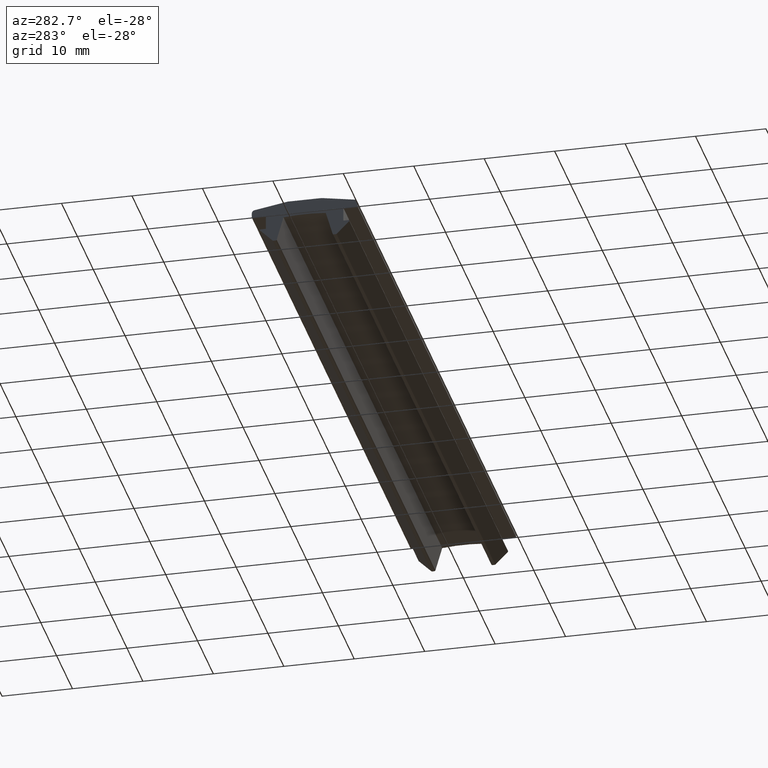
[diagram: clean part render]
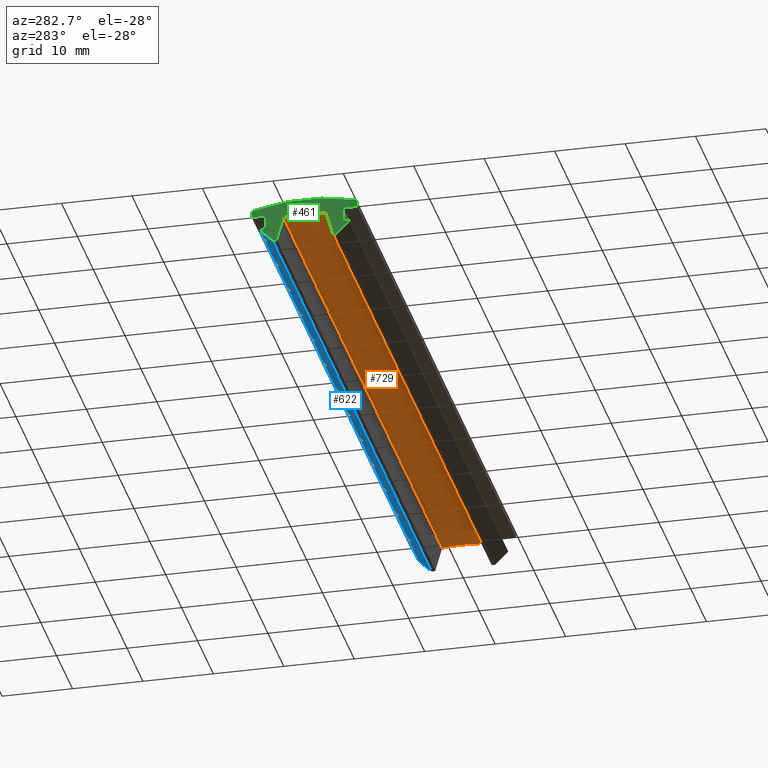
[diagram: same view with three faces highlighted in distinct colors, each labeled with its STEP entity id]
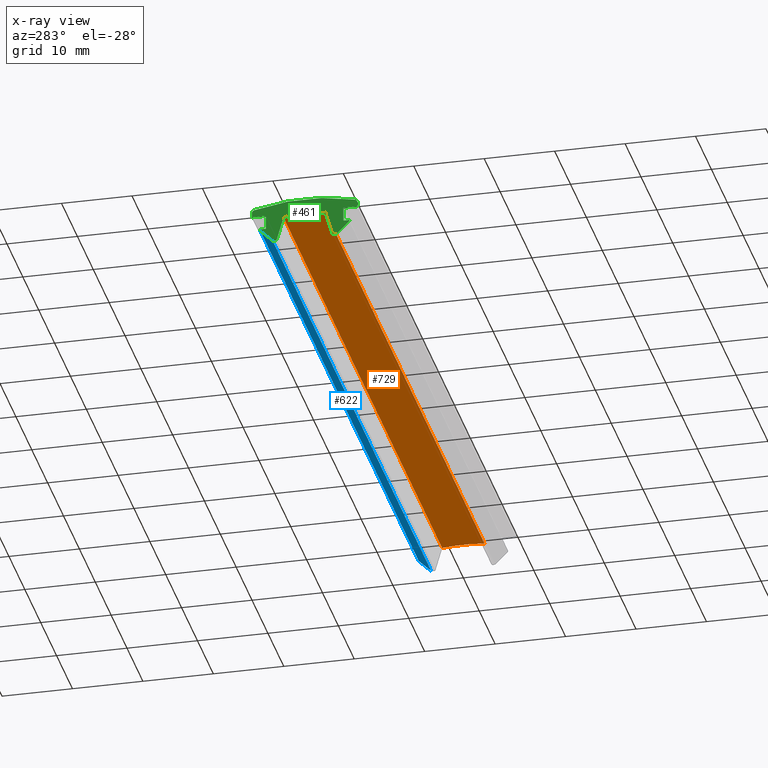
[diagram: x-ray of the same camera — body ghosted, the three highlighted faces saturated]
A machine part, auxiliary view with three faces highlighted in distinct colors.
The next image is the same camera in x-ray (body ghosted, the three faces saturated) — at least one of them is partly hidden behind the body in this view.
Their STEP definitions:

[orange] entity #729 — the highlighted cylindrical surface (partial cylindrical patch) has radius 30.019 mm, axis along (-1, -0, 0).
#101=CARTESIAN_POINT('',(100.0,-2.999999999999973,-0.150281450180138));
#102=VERTEX_POINT('',#101);
#109=CARTESIAN_POINT('',(100.0,3.000000000000010,-0.150281450180143));
#110=VERTEX_POINT('',#109);
#111=CARTESIAN_POINT('',(100.0,-8.881784E-016,-30.018956110195745));
#112=DIRECTION('',(1.0,6.123234E-017,-3.749399E-033));
#113=DIRECTION('',(6.123234E-017,-1.0,6.123234E-017));
#114=AXIS2_PLACEMENT_3D('',#111,#112,#113);
#115=CIRCLE('',#114,30.018956110195745);
#116=EDGE_CURVE('',#110,#102,#115,.T.);
#410=CARTESIAN_POINT('',(-1.836970E-016,3.000000000000004,-0.150281450180143));
#411=VERTEX_POINT('',#410);
#418=CARTESIAN_POINT('',(1.836970E-016,-2.999999999999980,-0.150281450180138));
#419=VERTEX_POINT('',#418);
#420=CARTESIAN_POINT('',(3.944305E-031,-7.105427E-015,-30.018956110195745));
#421=DIRECTION('',(1.0,6.123234E-017,-3.749399E-033));
#422=DIRECTION('',(6.123234E-017,-1.0,6.123234E-017));
#423=AXIS2_PLACEMENT_3D('',#420,#421,#422);
#424=CIRCLE('',#423,30.018956110195745);
#425=EDGE_CURVE('',#411,#419,#424,.T.);
#704=CARTESIAN_POINT('',(100.0,3.000000000000010,-0.150281450180143));
#705=DIRECTION('',(-1.0,0.0,0.0));
#706=VECTOR('',#705,100.0);
#707=LINE('',#704,#706);
#708=EDGE_CURVE('',#110,#411,#707,.T.);
#713=CARTESIAN_POINT('',(100.000000009999990,-9.675719E-016,-30.018956110195745));
#714=DIRECTION('',(-1.0,-6.123234E-017,3.749399E-033));
#715=DIRECTION('',(6.123234E-017,-1.0,6.123234E-017));
#716=AXIS2_PLACEMENT_3D('',#713,#714,#715);
#717=CYLINDRICAL_SURFACE('',#716,30.018956110195745);
#718=ORIENTED_EDGE('',*,*,#116,.T.);
#719=CARTESIAN_POINT('',(100.0,-2.999999999999973,-0.150281450180138));
#720=DIRECTION('',(-1.0,0.0,0.0));
#721=VECTOR('',#720,100.0);
#722=LINE('',#719,#721);
#723=EDGE_CURVE('',#102,#419,#722,.T.);
#724=ORIENTED_EDGE('',*,*,#723,.T.);
#725=ORIENTED_EDGE('',*,*,#425,.F.);
#726=ORIENTED_EDGE('',*,*,#708,.F.);
#727=EDGE_LOOP('',(#718,#724,#725,#726));
#728=FACE_OUTER_BOUND('',#727,.T.);
#729=ADVANCED_FACE('',(#728),#717,.F.);

[blue] entity #622 — the highlighted planar face has unit normal (-0, 0.7071, -0.7071).
#143=CARTESIAN_POINT('',(100.0,4.558578643762702,-3.591702806417446));
#144=VERTEX_POINT('',#143);
#152=CARTESIAN_POINT('',(100.0,6.329289321881354,-1.820992128298794));
#153=VERTEX_POINT('',#152);
#154=CARTESIAN_POINT('',(100.0,6.329289321881354,-1.820992128298794));
#155=DIRECTION('',(0.0,-0.707106781186547,-0.707106781186548));
#156=VECTOR('',#155,2.504163056034259);
#157=LINE('',#154,#156);
#158=EDGE_CURVE('',#153,#144,#157,.T.);
#367=CARTESIAN_POINT('',(-3.875572E-016,6.329289321881348,-1.820992128298794));
#368=VERTEX_POINT('',#367);
#376=CARTESIAN_POINT('',(-2.791324E-016,4.558578643762696,-3.591702806417446));
#377=VERTEX_POINT('',#376);
#378=CARTESIAN_POINT('',(-3.875572E-016,6.329289321881347,-1.820992128298792));
#379=DIRECTION('',(4.329780E-017,-0.707106781186547,-0.707106781186548));
#380=VECTOR('',#379,2.504163056034259);
#381=LINE('',#378,#380);
#382=EDGE_CURVE('',#368,#377,#381,.T.);
#601=CARTESIAN_POINT('',(101.296594217179890,6.500000000000004,-1.650281450180139));
#602=DIRECTION('',(-4.329780E-017,0.707106781186548,-0.707106781186547));
#603=DIRECTION('',(4.329780E-017,-0.707106781186547,-0.707106781186548));
#604=AXIS2_PLACEMENT_3D('',#601,#602,#603);
#605=PLANE('',#604);
#606=ORIENTED_EDGE('',*,*,#382,.F.);
#607=CARTESIAN_POINT('',(-3.875572E-016,6.329289321881348,-1.820992128298794));
#608=DIRECTION('',(1.0,0.0,0.0));
#609=VECTOR('',#608,100.0);
#610=LINE('',#607,#609);
#611=EDGE_CURVE('',#368,#153,#610,.T.);
#612=ORIENTED_EDGE('',*,*,#611,.T.);
#613=ORIENTED_EDGE('',*,*,#158,.T.);
#614=CARTESIAN_POINT('',(100.0,4.558578643762702,-3.591702806417446));
#615=DIRECTION('',(-1.0,0.0,0.0));
#616=VECTOR('',#615,100.0);
#617=LINE('',#614,#616);
#618=EDGE_CURVE('',#144,#377,#617,.T.);
#619=ORIENTED_EDGE('',*,*,#618,.T.);
#620=EDGE_LOOP('',(#606,#612,#613,#619));
#621=FACE_OUTER_BOUND('',#620,.T.);
#622=ADVANCED_FACE('',(#621),#605,.T.);

[green] entity #461 — the highlighted planar face has unit normal (-1, 0, 0).
#18=CARTESIAN_POINT('',(3.893506E-016,-6.358578643762685,-1.750281450180139));
#19=VERTEX_POINT('',#18);
#26=CARTESIAN_POINT('',(3.875572E-016,-6.329289321881340,-1.820992128298793));
#27=VERTEX_POINT('',#26);
#28=CARTESIAN_POINT('',(3.832274E-016,-6.258578643762686,-1.750281450180139));
#29=DIRECTION('',(-1.0,-6.123234E-017,3.749399E-033));
#30=DIRECTION('',(6.123234E-017,-1.0,6.123234E-017));
#31=AXIS2_PLACEMENT_3D('',#28,#29,#30);
#32=CIRCLE('',#31,0.100000000000000);
#33=EDGE_CURVE('',#27,#19,#32,.T.);
#253=CARTESIAN_POINT('',(-5.051668E-016,8.250000000000004,-3.949722514642862));
#254=DIRECTION('',(-1.0,0.0,0.0));
#255=DIRECTION('',(0.0,-1.0,0.0));
#256=AXIS2_PLACEMENT_3D('',#253,#254,#255);
#257=PLANE('',#256);
#258=CARTESIAN_POINT('',(2.791324E-016,-4.558578643762690,-3.591702806417445));
#259=VERTEX_POINT('',#258);
#260=CARTESIAN_POINT('',(3.875572E-016,-6.329289321881340,-1.820992128298793));
#261=DIRECTION('',(-4.329780E-017,0.707106781186547,-0.707106781186548));
#262=VECTOR('',#261,2.504163056034258);
#263=LINE('',#260,#262);
#264=EDGE_CURVE('',#27,#259,#263,.T.);
#265=ORIENTED_EDGE('',*,*,#264,.F.);
#266=ORIENTED_EDGE('',*,*,#33,.T.);
#267=CARTESIAN_POINT('',(3.832274E-016,-6.258578643762686,-1.650281450180138));
#268=VERTEX_POINT('',#267);
#269=CARTESIAN_POINT('',(3.832274E-016,-6.258578643762686,-1.750281450180139));
#270=DIRECTION('',(-1.0,-6.123234E-017,3.749399E-033));
#271=DIRECTION('',(6.123234E-017,-1.0,6.123234E-017));
#272=AXIS2_PLACEMENT_3D('',#269,#270,#271);
#273=CIRCLE('',#272,0.100000000000000);
#274=EDGE_CURVE('',#19,#268,#273,.T.);
#275=ORIENTED_EDGE('',*,*,#274,.T.);
#276=CARTESIAN_POINT('',(3.367779E-016,-5.499999999999996,-1.650281450180138));
#277=VERTEX_POINT('',#276);
#278=CARTESIAN_POINT('',(3.367779E-016,-5.499999999999996,-1.650281450180138));
#279=DIRECTION('',(0.0,-1.0,0.0));
#280=VECTOR('',#279,0.758578643762690);
#281=LINE('',#278,#280);
#282=EDGE_CURVE('',#277,#268,#281,.T.);
#283=ORIENTED_EDGE('',*,*,#282,.F.);
#284=CARTESIAN_POINT('',(3.367779E-016,-5.499999999999995,0.349718549819862));
#285=VERTEX_POINT('',#284);
#286=CARTESIAN_POINT('',(3.367779E-016,-5.499999999999995,0.349718549819862));
#287=DIRECTION('',(0.0,0.0,-1.0));
#288=VECTOR('',#287,2.0);
#289=LINE('',#286,#288);
#290=EDGE_CURVE('',#285,#277,#289,.T.);
#291=ORIENTED_EDGE('',*,*,#290,.F.);
#292=CARTESIAN_POINT('',(4.592425E-016,-7.499999999999996,0.349718549819862));
#293=VERTEX_POINT('',#292);
#294=CARTESIAN_POINT('',(4.592425E-016,-7.499999999999996,0.349718549819862));
#295=DIRECTION('',(0.0,1.0,0.0));
#296=VECTOR('',#295,2.0);
#297=LINE('',#294,#296);
#298=EDGE_CURVE('',#293,#285,#297,.T.);
#299=ORIENTED_EDGE('',*,*,#298,.F.);
#300=CARTESIAN_POINT('',(4.592425E-016,-7.499999999999996,0.964682297960210));
#301=VERTEX_POINT('',#300);
#302=CARTESIAN_POINT('',(4.592425E-016,-7.499999999999996,0.349718549819862));
#303=DIRECTION('',(0.0,0.0,1.0));
#304=VECTOR('',#303,0.614963748140347);
#305=LINE('',#302,#304);
#306=EDGE_CURVE('',#293,#301,#305,.T.);
#307=ORIENTED_EDGE('',*,*,#306,.T.);
#308=CARTESIAN_POINT('',(4.362464E-016,-7.124444444444439,1.448948320149374));
#309=VERTEX_POINT('',#308);
#310=CARTESIAN_POINT('',(4.286264E-016,-6.999999999999996,0.964682297960210));
#311=DIRECTION('',(-1.0,-6.123234E-017,3.749399E-033));
#312=DIRECTION('',(6.123234E-017,-1.0,6.123234E-017));
#313=AXIS2_PLACEMENT_3D('',#310,#311,#312);
#314=CIRCLE('',#313,0.500000000000000);
#315=EDGE_CURVE('',#301,#309,#314,.T.);
#316=ORIENTED_EDGE('',*,*,#315,.T.);
#317=CARTESIAN_POINT('',(-4.362464E-016,7.124444444444449,1.448948320149363));
#318=VERTEX_POINT('',#317);
#319=CARTESIAN_POINT('',(9.860761E-031,-1.687539E-014,-26.275281450180184));
#320=DIRECTION('',(1.0,6.123234E-017,-3.749399E-033));
#321=DIRECTION('',(6.123234E-017,-1.0,6.123234E-017));
#322=AXIS2_PLACEMENT_3D('',#319,#320,#321);
#323=CIRCLE('',#322,28.625000000000050);
#324=EDGE_CURVE('',#318,#309,#323,.T.);
#325=ORIENTED_EDGE('',*,*,#324,.F.);
#326=CARTESIAN_POINT('',(-4.592425E-016,7.500000000000004,0.964682297960203));
#327=VERTEX_POINT('',#326);
#328=CARTESIAN_POINT('',(-4.286264E-016,6.999999999999999,0.964682297960203));
#329=DIRECTION('',(-1.0,-6.123234E-017,3.749399E-033));
#330=DIRECTION('',(6.123234E-017,-1.0,6.123234E-017));
#331=AXIS2_PLACEMENT_3D('',#328,#329,#330);
#332=CIRCLE('',#331,0.500000000000001);
#333=EDGE_CURVE('',#318,#327,#332,.T.);
#334=ORIENTED_EDGE('',*,*,#333,.T.);
#335=CARTESIAN_POINT('',(-4.592425E-016,7.500000000000004,0.349718549819861));
#336=VERTEX_POINT('',#335);
#337=CARTESIAN_POINT('',(-4.592425E-016,7.500000000000004,0.964682297960203));
#338=DIRECTION('',(0.0,0.0,-1.0));
#339=VECTOR('',#338,0.614963748140341);
#340=LINE('',#337,#339);
#341=EDGE_CURVE('',#327,#336,#340,.T.);
#342=ORIENTED_EDGE('',*,*,#341,.T.);
#343=CARTESIAN_POINT('',(-3.367779E-016,5.500000000000004,0.349718549819861));
#344=VERTEX_POINT('',#343);
#345=CARTESIAN_POINT('',(-4.592425E-016,7.500000000000004,0.349718549819861));
#346=DIRECTION('',(0.0,-1.0,0.0));
#347=VECTOR('',#346,2.0);
#348=LINE('',#345,#347);
#349=EDGE_CURVE('',#336,#344,#348,.T.);
#350=ORIENTED_EDGE('',*,*,#349,.T.);
#351=CARTESIAN_POINT('',(-3.367779E-016,5.500000000000004,-1.650281450180139));
#352=VERTEX_POINT('',#351);
#353=CARTESIAN_POINT('',(-3.367779E-016,5.500000000000004,0.349718549819861));
#354=DIRECTION('',(0.0,0.0,-1.0));
#355=VECTOR('',#354,2.0);
#356=LINE('',#353,#355);
#357=EDGE_CURVE('',#344,#352,#356,.T.);
#358=ORIENTED_EDGE('',*,*,#357,.T.);
#359=CARTESIAN_POINT('',(-3.832274E-016,6.258578643762690,-1.650281450180139));
#360=VERTEX_POINT('',#359);
#361=CARTESIAN_POINT('',(-3.367779E-016,5.500000000000004,-1.650281450180139));
#362=DIRECTION('',(0.0,1.0,0.0));
#363=VECTOR('',#362,0.758578643762686);
#364=LINE('',#361,#363);
#365=EDGE_CURVE('',#352,#360,#364,.T.);
#366=ORIENTED_EDGE('',*,*,#365,.T.);
#367=CARTESIAN_POINT('',(-3.875572E-016,6.329289321881348,-1.820992128298794));
#368=VERTEX_POINT('',#367);
#369=CARTESIAN_POINT('',(-3.832274E-016,6.258578643762690,-1.750281450180139));
#370=DIRECTION('',(-1.0,-6.123234E-017,3.749399E-033));
#371=DIRECTION('',(6.123234E-017,-1.0,6.123234E-017));
#372=AXIS2_PLACEMENT_3D('',#369,#370,#371);
#373=CIRCLE('',#372,0.099999999999999);
#374=EDGE_CURVE('',#360,#368,#373,.T.);
#375=ORIENTED_EDGE('',*,*,#374,.T.);
#376=CARTESIAN_POINT('',(-2.791324E-016,4.558578643762696,-3.591702806417446));
#377=VERTEX_POINT('',#376);
#378=CARTESIAN_POINT('',(-3.875572E-016,6.329289321881347,-1.820992128298792));
#379=DIRECTION('',(4.329780E-017,-0.707106781186547,-0.707106781186548));
#380=VECTOR('',#379,2.504163056034259);
#381=LINE('',#378,#380);
#382=EDGE_CURVE('',#368,#377,#381,.T.);
#383=ORIENTED_EDGE('',*,*,#382,.T.);
#384=CARTESIAN_POINT('',(-2.704729E-016,4.417157287525387,-3.650281450180138));
#385=VERTEX_POINT('',#384);
#386=CARTESIAN_POINT('',(-2.704729E-016,4.417157287525387,-3.450281450180138));
#387=DIRECTION('',(-1.0,-6.123234E-017,3.749399E-033));
#388=DIRECTION('',(6.123234E-017,-1.0,6.123234E-017));
#389=AXIS2_PLACEMENT_3D('',#386,#387,#388);
#390=CIRCLE('',#389,0.200000000000000);
#391=EDGE_CURVE('',#377,#385,#390,.T.);
#392=ORIENTED_EDGE('',*,*,#391,.T.);
#393=CARTESIAN_POINT('',(-2.541669E-016,4.150860282550874,-3.650281450180138));
#394=VERTEX_POINT('',#393);
#395=CARTESIAN_POINT('',(-2.704729E-016,4.417157287525387,-3.650281450180138));
#396=DIRECTION('',(0.0,-1.0,0.0));
#397=VECTOR('',#396,0.266297004974513);
#398=LINE('',#395,#397);
#399=EDGE_CURVE('',#385,#394,#398,.T.);
#400=ORIENTED_EDGE('',*,*,#399,.T.);
#401=CARTESIAN_POINT('',(-2.423916E-016,3.958555493022710,-3.505225675759613));
#402=VERTEX_POINT('',#401);
#403=CARTESIAN_POINT('',(-2.541669E-016,4.150860282550874,-3.450281450180138));
#404=DIRECTION('',(-1.0,-6.123234E-017,3.749399E-033));
#405=DIRECTION('',(6.123234E-017,-1.0,6.123234E-017));
#406=AXIS2_PLACEMENT_3D('',#403,#404,#405);
#407=CIRCLE('',#406,0.200000000000000);
#408=EDGE_CURVE('',#394,#402,#407,.T.);
#409=ORIENTED_EDGE('',*,*,#408,.T.);
#410=CARTESIAN_POINT('',(-1.836970E-016,3.000000000000004,-0.150281450180143));
#411=VERTEX_POINT('',#410);
#412=CARTESIAN_POINT('',(-2.423916E-016,3.958555493022710,-3.505225675759614));
#413=DIRECTION('',(1.682182E-017,-0.274721127897378,0.961523947640823));
#414=VECTOR('',#413,3.489194662089383);
#415=LINE('',#412,#414);
#416=EDGE_CURVE('',#402,#411,#415,.T.);
#417=ORIENTED_EDGE('',*,*,#416,.T.);
#418=CARTESIAN_POINT('',(1.836970E-016,-2.999999999999980,-0.150281450180138));
#419=VERTEX_POINT('',#418);
#420=CARTESIAN_POINT('',(3.944305E-031,-7.105427E-015,-30.018956110195745));
#421=DIRECTION('',(1.0,6.123234E-017,-3.749399E-033));
#422=DIRECTION('',(6.123234E-017,-1.0,6.123234E-017));
#423=AXIS2_PLACEMENT_3D('',#420,#421,#422);
#424=CIRCLE('',#423,30.018956110195745);
#425=EDGE_CURVE('',#411,#419,#424,.T.);
#426=ORIENTED_EDGE('',*,*,#425,.T.);
#427=CARTESIAN_POINT('',(2.423916E-016,-3.958555493022705,-3.505225675759614));
#428=VERTEX_POINT('',#427);
#429=CARTESIAN_POINT('',(1.836970E-016,-2.999999999999989,-0.150281450180136));
#430=DIRECTION('',(1.682182E-017,-0.274721127897380,-0.961523947640823));
#431=VECTOR('',#430,3.489194662089392);
#432=LINE('',#429,#431);
#433=EDGE_CURVE('',#419,#428,#432,.T.);
#434=ORIENTED_EDGE('',*,*,#433,.T.);
#435=CARTESIAN_POINT('',(2.541669E-016,-4.150860282550871,-3.650281450180138));
#436=VERTEX_POINT('',#435);
#437=CARTESIAN_POINT('',(2.541669E-016,-4.150860282550870,-3.450281450180138));
#438=DIRECTION('',(-1.0,-6.123234E-017,3.749399E-033));
#439=DIRECTION('',(6.123234E-017,-1.0,6.123234E-017));
#440=AXIS2_PLACEMENT_3D('',#437,#438,#439);
#441=CIRCLE('',#440,0.200000000000000);
#442=EDGE_CURVE('',#428,#436,#441,.T.);
#443=ORIENTED_EDGE('',*,*,#442,.T.);
#444=CARTESIAN_POINT('',(2.704729E-016,-4.417157287525380,-3.650281450180138));
#445=VERTEX_POINT('',#444);
#446=CARTESIAN_POINT('',(2.541669E-016,-4.150860282550871,-3.650281450180137));
#447=DIRECTION('',(0.0,-1.0,0.0));
#448=VECTOR('',#447,0.266297004974509);
#449=LINE('',#446,#448);
#450=EDGE_CURVE('',#436,#445,#449,.T.);
#451=ORIENTED_EDGE('',*,*,#450,.T.);
#452=CARTESIAN_POINT('',(2.704729E-016,-4.417157287525380,-3.450281450180138));
#453=DIRECTION('',(-1.0,-6.123234E-017,3.749399E-033));
#454=DIRECTION('',(6.123234E-017,-1.0,6.123234E-017));
#455=AXIS2_PLACEMENT_3D('',#452,#453,#454);
#456=CIRCLE('',#455,0.200000000000000);
#457=EDGE_CURVE('',#445,#259,#456,.T.);
#458=ORIENTED_EDGE('',*,*,#457,.T.);
#459=EDGE_LOOP('',(#265,#266,#275,#283,#291,#299,#307,#316,#325,#334,#342,#350,#358,#366,#375,#383,#392,#400,#409,#417,#426,#434,#443,#451,#458));
#460=FACE_OUTER_BOUND('',#459,.T.);
#461=ADVANCED_FACE('',(#460),#257,.T.);